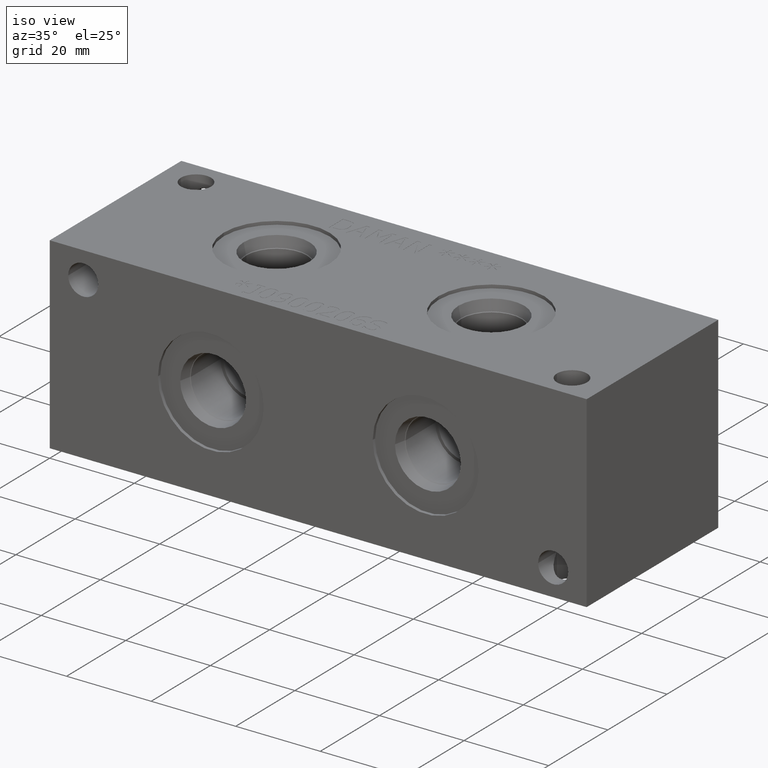
[diagram: clean part render]
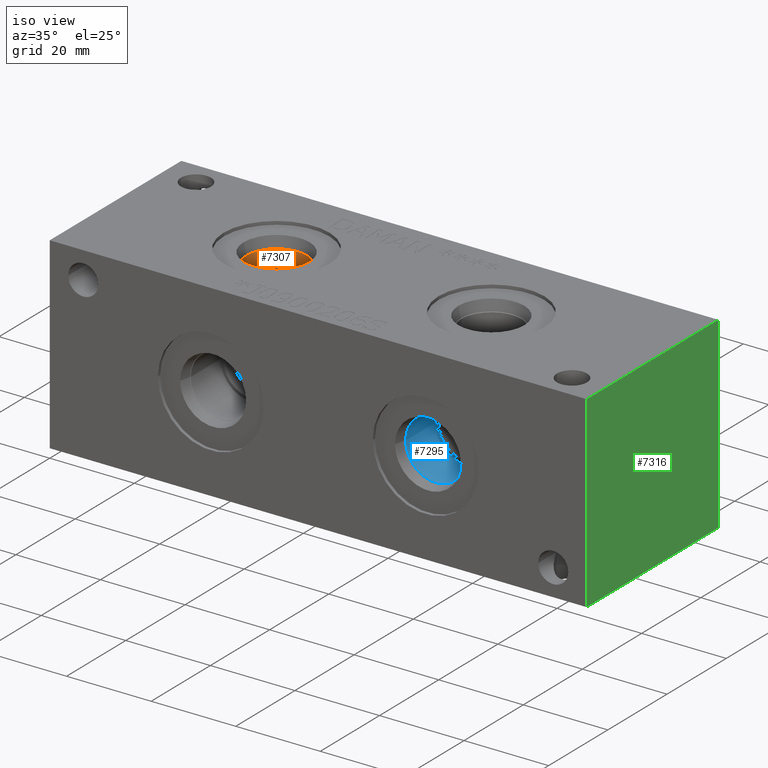
[diagram: same view with three faces highlighted in distinct colors, each labeled with its STEP entity id]
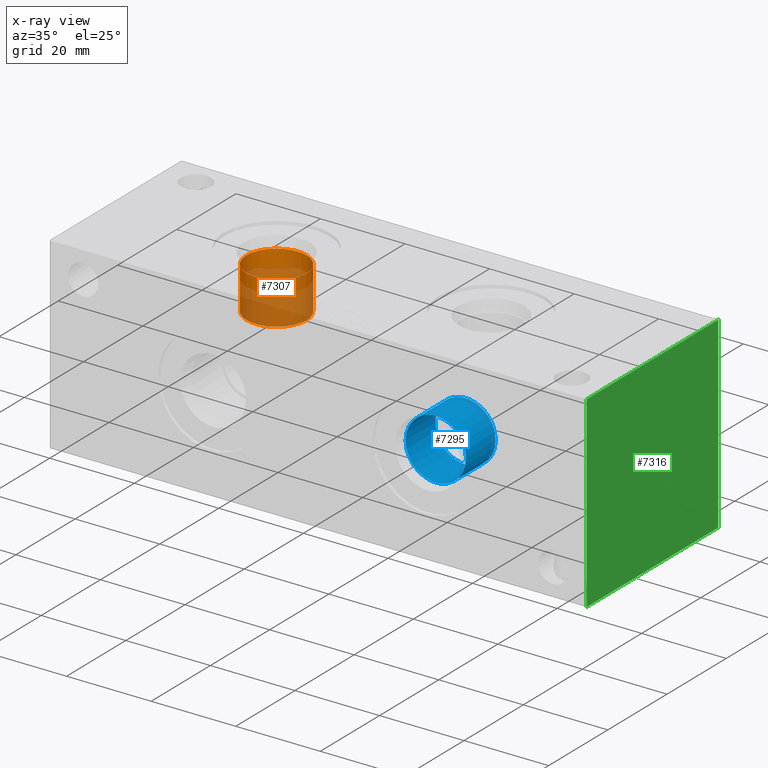
[diagram: x-ray of the same camera — body ghosted, the three highlighted faces saturated]
A machine part, iso view with three faces highlighted in distinct colors.
The next image is the same camera in x-ray (body ghosted, the three faces saturated) — at least one of them is partly hidden behind the body in this view.
Their STEP definitions:

[orange] entity #7307 — the highlighted cylindrical surface (bore or boss wall) has radius 7.1374 mm, axis along (0, 0, 1).
#67=CYLINDRICAL_SURFACE('',#7657,7.1374);
#143=CIRCLE('',#7654,7.1374);
#144=CIRCLE('',#7655,7.1374);
#146=CIRCLE('',#7658,7.1374);
#955=FACE_OUTER_BOUND('',#1368,.T.);
#1368=EDGE_LOOP('',(#6359,#6360,#6361,#6362,#6363));
#2032=LINE('',#12763,#2688);
#2688=VECTOR('',#8973,7.1374);
#3364=VERTEX_POINT('',#12754);
#3365=VERTEX_POINT('',#12755);
#3367=VERTEX_POINT('',#12761);
#4372=EDGE_CURVE('',#3364,#3365,#143,.T.);
#4373=EDGE_CURVE('',#3365,#3364,#144,.T.);
#4375=EDGE_CURVE('',#3367,#3367,#146,.T.);
#4376=EDGE_CURVE('',#3367,#3365,#2032,.T.);
#6359=ORIENTED_EDGE('',*,*,#4375,.F.);
#6360=ORIENTED_EDGE('',*,*,#4376,.T.);
#6361=ORIENTED_EDGE('',*,*,#4372,.F.);
#6362=ORIENTED_EDGE('',*,*,#4373,.F.);
#6363=ORIENTED_EDGE('',*,*,#4376,.F.);
#7307=ADVANCED_FACE('',(#955),#67,.F.);
#7654=AXIS2_PLACEMENT_3D('',#12756,#8963,#8964);
#7655=AXIS2_PLACEMENT_3D('',#12757,#8965,#8966);
#7657=AXIS2_PLACEMENT_3D('',#12760,#8969,#8970);
#7658=AXIS2_PLACEMENT_3D('',#12762,#8971,#8972);
#8963=DIRECTION('center_axis',(0.,0.,1.));
#8964=DIRECTION('ref_axis',(1.,0.,0.));
#8965=DIRECTION('center_axis',(0.,0.,1.));
#8966=DIRECTION('ref_axis',(1.,0.,0.));
#8969=DIRECTION('center_axis',(0.,0.,1.));
#8970=DIRECTION('ref_axis',(1.,0.,0.));
#8971=DIRECTION('center_axis',(0.,0.,-1.));
#8972=DIRECTION('ref_axis',(1.,0.,0.));
#8973=DIRECTION('',(0.,0.,-1.));
#12754=CARTESIAN_POINT('',(45.2374,22.225,30.9626));
#12755=CARTESIAN_POINT('',(30.9626,22.225,30.9626));
#12756=CARTESIAN_POINT('Origin',(38.1,22.225,30.9626));
#12757=CARTESIAN_POINT('Origin',(38.1,22.225,30.9626));
#12760=CARTESIAN_POINT('Origin',(38.1,22.225,37.7063));
#12761=CARTESIAN_POINT('',(30.9626,22.225,41.021));
#12762=CARTESIAN_POINT('Origin',(38.1,22.225,41.021));
#12763=CARTESIAN_POINT('',(30.9626,22.225,37.7063));

[blue] entity #7295 — the highlighted cylindrical surface (bore or boss wall) has radius 7.1374 mm, axis along (0, -1, 0).
#60=CYLINDRICAL_SURFACE('',#7627,7.1374);
#89=CIRCLE('',#7547,7.1374);
#125=CIRCLE('',#7624,7.1374);
#126=CIRCLE('',#7625,7.1374);
#943=FACE_OUTER_BOUND('',#1354,.T.);
#1354=EDGE_LOOP('',(#6295,#6296,#6297,#6298,#6299));
#2024=LINE('',#12707,#2680);
#2680=VECTOR('',#8903,7.1374);
#3300=VERTEX_POINT('',#12474);
#3348=VERTEX_POINT('',#12700);
#3349=VERTEX_POINT('',#12701);
#4270=EDGE_CURVE('',#3300,#3300,#89,.T.);
#4346=EDGE_CURVE('',#3348,#3349,#125,.T.);
#4347=EDGE_CURVE('',#3349,#3348,#126,.T.);
#4349=EDGE_CURVE('',#3300,#3349,#2024,.T.);
#6295=ORIENTED_EDGE('',*,*,#4270,.T.);
#6296=ORIENTED_EDGE('',*,*,#4349,.T.);
#6297=ORIENTED_EDGE('',*,*,#4346,.F.);
#6298=ORIENTED_EDGE('',*,*,#4347,.F.);
#6299=ORIENTED_EDGE('',*,*,#4349,.F.);
#7295=ADVANCED_FACE('',(#943),#60,.F.);
#7547=AXIS2_PLACEMENT_3D('',#12476,#8727,#8728);
#7624=AXIS2_PLACEMENT_3D('',#12702,#8895,#8896);
#7625=AXIS2_PLACEMENT_3D('',#12703,#8897,#8898);
#7627=AXIS2_PLACEMENT_3D('',#12706,#8901,#8902);
#8727=DIRECTION('center_axis',(0.,-1.,0.));
#8728=DIRECTION('ref_axis',(1.,0.,0.));
#8895=DIRECTION('center_axis',(0.,-1.,0.));
#8896=DIRECTION('ref_axis',(1.,0.,0.));
#8897=DIRECTION('center_axis',(0.,-1.,0.));
#8898=DIRECTION('ref_axis',(1.,0.,0.));
#8901=DIRECTION('center_axis',(0.,-1.,0.));
#8902=DIRECTION('ref_axis',(1.,0.,0.));
#8903=DIRECTION('',(0.,1.,0.));
#12474=CARTESIAN_POINT('',(81.7626,3.429,22.225));
#12476=CARTESIAN_POINT('Origin',(88.9,3.429,22.225));
#12700=CARTESIAN_POINT('',(96.0374,13.4874,22.225));
#12701=CARTESIAN_POINT('',(81.7626,13.4874,22.225));
#12702=CARTESIAN_POINT('Origin',(88.9,13.4874,22.225));
#12703=CARTESIAN_POINT('Origin',(88.9,13.4874,22.225));
#12706=CARTESIAN_POINT('Origin',(88.9,6.7437,22.225));
#12707=CARTESIAN_POINT('',(81.7626,6.7437,22.225));

[green] entity #7316 — the highlighted planar face has unit normal (1, 0, 0).
#964=FACE_OUTER_BOUND('',#1380,.T.);
#1380=EDGE_LOOP('',(#6409,#6410,#6411,#6412));
#1626=LINE('',#11519,#2282);
#2042=LINE('',#12800,#2698);
#2043=LINE('',#12803,#2699);
#2044=LINE('',#12804,#2700);
#2282=VECTOR('',#8017,10.);
#2698=VECTOR('',#9015,10.);
#2699=VECTOR('',#9018,10.);
#2700=VECTOR('',#9019,10.);
#3017=VERTEX_POINT('',#11516);
#3018=VERTEX_POINT('',#11518);
#3378=VERTEX_POINT('',#12798);
#3379=VERTEX_POINT('',#12802);
#3852=EDGE_CURVE('',#3017,#3018,#1626,.T.);
#4394=EDGE_CURVE('',#3378,#3018,#2042,.T.);
#4395=EDGE_CURVE('',#3379,#3378,#2043,.T.);
#4396=EDGE_CURVE('',#3379,#3017,#2044,.T.);
#6409=ORIENTED_EDGE('',*,*,#4395,.T.);
#6410=ORIENTED_EDGE('',*,*,#4394,.T.);
#6411=ORIENTED_EDGE('',*,*,#3852,.F.);
#6412=ORIENTED_EDGE('',*,*,#4396,.F.);
#6634=PLANE('',#7675);
#7316=ADVANCED_FACE('',(#964),#6634,.T.);
#7675=AXIS2_PLACEMENT_3D('',#12801,#9016,#9017);
#8017=DIRECTION('',(0.,1.,0.));
#9015=DIRECTION('',(0.,0.,1.));
#9016=DIRECTION('center_axis',(1.,0.,0.));
#9017=DIRECTION('ref_axis',(0.,1.,0.));
#9018=DIRECTION('',(0.,1.,0.));
#9019=DIRECTION('',(0.,0.,1.));
#11516=CARTESIAN_POINT('',(127.,0.,44.45));
#11518=CARTESIAN_POINT('',(127.,44.45,44.45));
#11519=CARTESIAN_POINT('',(127.,0.,44.45));
#12798=CARTESIAN_POINT('',(127.,44.45,0.));
#12800=CARTESIAN_POINT('',(127.,44.45,0.));
#12801=CARTESIAN_POINT('Origin',(127.,0.,0.));
#12802=CARTESIAN_POINT('',(127.,0.,0.));
#12803=CARTESIAN_POINT('',(127.,0.,0.));
#12804=CARTESIAN_POINT('',(127.,0.,0.));